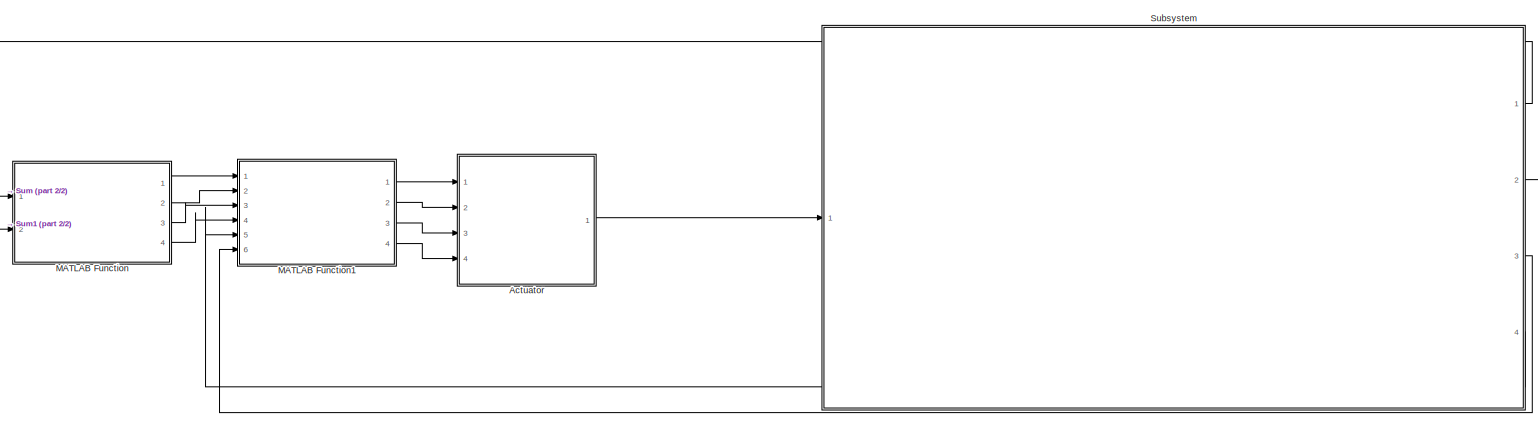
[diagram: root canvas - part 1/2, most of the canvas]
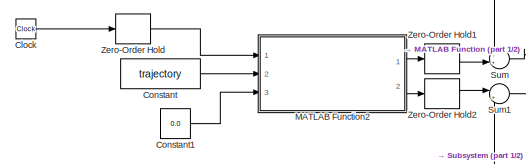
[diagram: root canvas - part 2/2, middle left region]
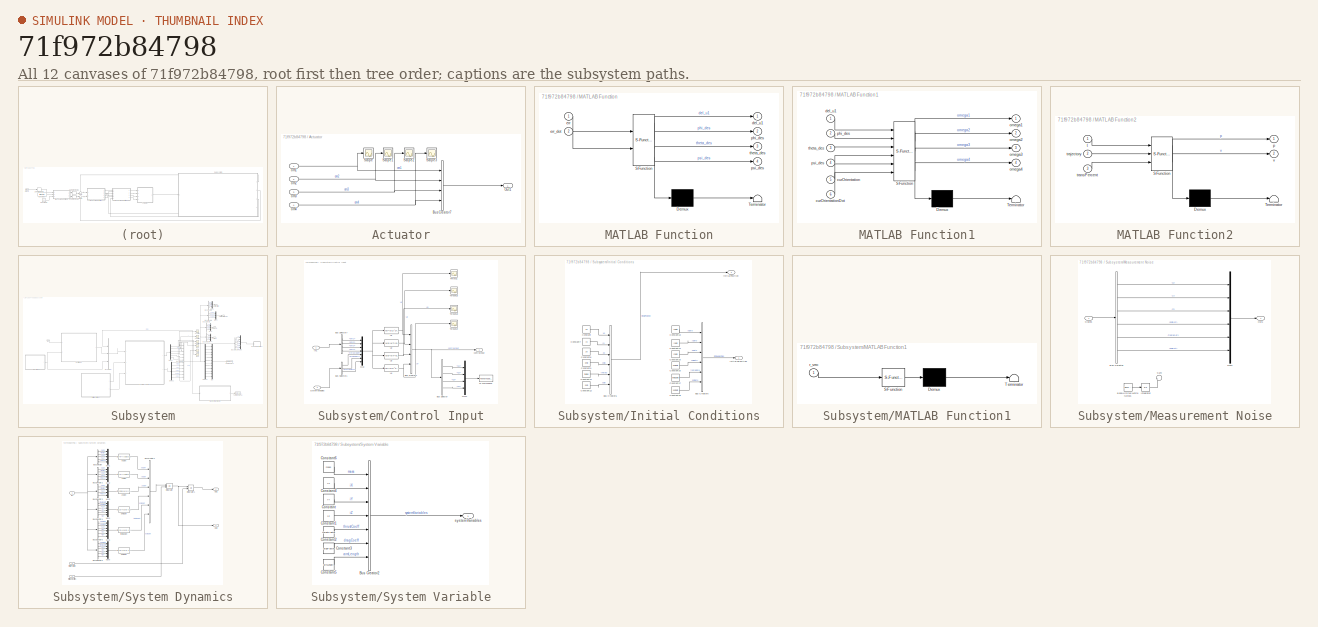
[diagram: thumbnail index - all 12 canvases of the model, root first then tree order]
MODEL slx_71f972b84798
KIND model
CONFIG AbsTol = auto
CONFIG EnableMultiTasking = off
CONFIG FixedStep = auto
CONFIG MaxStep = auto
CONFIG MinStep = auto
CONFIG RelTol = 1e-3
CONFIG SampleTimeConstraint = Unconstrained
CONFIG Solver = VariableStepAuto
CONFIG SolverName = VariableStepAuto
CONFIG StartTime = 0.0
CONFIG StopTime = 2.5
BLOCK [SubSystem] Actuator
  Ports = [4, 1]
  RequestExecContextInheritance = off
BLOCK [BusCreator] Actuator/Bus Creator7
  DisplayOption = bar
  InheritFromInputs = on
  Inputs = 4
  Ports = [4, 1]
BLOCK [Outport] Actuator/Out1
  IconDisplay = Port number
BLOCK [Scope] Actuator/Scope
  Floating = off
  NumInputPorts = 1
  Ports = [1]
  ScopeSpecificationString = Simulink.scopes.TimeScopeBlockCfg('CurrentConfiguration', extmgr.ConfigurationSet(extmgr.Configuration('Core','General UI',true),extmgr.Configuration('Core','Source UI',true),extmgr.Configuration('Sources','WiredSimulink',true,'DataLoggingVariableName','ScopeData1'),extmgr.Configuration('Visuals','Time Domain',true,'SerializedDisplays',{struct('MinYLimReal','-28.45618','MaxYLimReal','8.15408','YLa...<+1366ch>
BLOCK [Scope] Actuator/Scope1
  Floating = off
  NumInputPorts = 1
  Ports = [1]
  ScopeSpecificationString = Simulink.scopes.TimeScopeBlockCfg('CurrentConfiguration', extmgr.ConfigurationSet(extmgr.Configuration('Core','General UI',true),extmgr.Configuration('Core','Source UI',true),extmgr.Configuration('Sources','WiredSimulink',true,'DataLoggingVariableName','ScopeData2'),extmgr.Configuration('Visuals','Time Domain',true),extmgr.Configuration('Tools','Plot Navigation',true),extmgr.Configuration('Tools',...<+40ch>
BLOCK [Scope] Actuator/Scope2
  Floating = off
  NumInputPorts = 1
  Ports = [1]
  ScopeSpecificationString = Simulink.scopes.TimeScopeBlockCfg('CurrentConfiguration', extmgr.ConfigurationSet(extmgr.Configuration('Core','General UI',true),extmgr.Configuration('Core','Source UI',true),extmgr.Configuration('Sources','WiredSimulink',true,'DataLoggingVariableName','ScopeData3'),extmgr.Configuration('Visuals','Time Domain',true),extmgr.Configuration('Tools','Plot Navigation',true),extmgr.Configuration('Tools',...<+40ch>
BLOCK [Scope] Actuator/Scope3
  Floating = off
  NumInputPorts = 1
  Ports = [1]
  ScopeSpecificationString = Simulink.scopes.TimeScopeBlockCfg('CurrentConfiguration', extmgr.ConfigurationSet(extmgr.Configuration('Core','General UI',true),extmgr.Configuration('Core','Source UI',true),extmgr.Configuration('Sources','WiredSimulink',true,'DataLoggingVariableName','ScopeData4'),extmgr.Configuration('Visuals','Time Domain',true),extmgr.Configuration('Tools','Plot Navigation',true),extmgr.Configuration('Tools',...<+40ch>
BLOCK [Inport] Actuator/om1
  IconDisplay = Port number
BLOCK [Inport] Actuator/om2
  IconDisplay = Port number
  Port = 2
BLOCK [Inport] Actuator/om3
  IconDisplay = Port number
  Port = 3
BLOCK [Inport] Actuator/om4
  IconDisplay = Port number
  Port = 4
BLOCK [Clock] Clock
BLOCK [Constant] Constant
  Value = trajectory
BLOCK [Constant] Constant1
  Value = 0.0
BLOCK [SubSystem] MATLAB Function
  ErrorFcn = Stateflow.Translate.translate
  PermitHierarchicalResolution = ExplicitOnly
  Ports = [2, 4]
  RequestExecContextInheritance = off
  SFBlockType = MATLAB Function
  TreatAsAtomicUnit = on
BLOCK [Demux] MATLAB Function/ Demux 
  Outputs = 1
  Ports = [1, 1]
BLOCK [S-Function] MATLAB Function/ SFunction 
  EnableBusSupport = on
  FunctionName = sf_sfun
  PortCounts = [2 5]
  Ports = [2, 5]
  SFcnIsStateOwnerBlock = off
  SFunctionDeploymentMode = off
  Tag = Stateflow S-Function quadcopter_control 3
BLOCK [Terminator] MATLAB Function/ Terminator 
BLOCK [Outport] MATLAB Function/del_u1
  IconDisplay = Port number
BLOCK [Inport] MATLAB Function/err
  IconDisplay = Port number
BLOCK [Inport] MATLAB Function/err_dot
  IconDisplay = Port number
  Port = 2
BLOCK [Outport] MATLAB Function/phi_des
  IconDisplay = Port number
  Port = 2
BLOCK [Outport] MATLAB Function/psi_des
  IconDisplay = Port number
  Port = 4
BLOCK [Outport] MATLAB Function/theta_des
  IconDisplay = Port number
  Port = 3
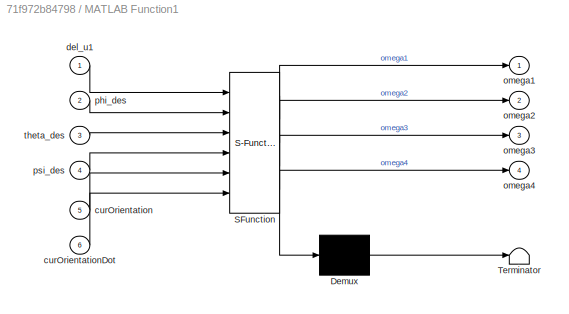
BLOCK [SubSystem] MATLAB Function1
  ErrorFcn = Stateflow.Translate.translate
  PermitHierarchicalResolution = ExplicitOnly
  Ports = [6, 4]
  RequestExecContextInheritance = off
  SFBlockType = MATLAB Function
  TreatAsAtomicUnit = on
BLOCK [Demux] MATLAB Function1/ Demux 
  Outputs = 1
  Ports = [1, 1]
BLOCK [S-Function] MATLAB Function1/ SFunction 
  EnableBusSupport = on
  FunctionName = sf_sfun
  PortCounts = [6 5]
  Ports = [6, 5]
  SFcnIsStateOwnerBlock = off
  SFunctionDeploymentMode = off
  Tag = Stateflow S-Function quadcopter_control 5
BLOCK [Terminator] MATLAB Function1/ Terminator 
BLOCK [Inport] MATLAB Function1/curOrientation
  IconDisplay = Port number
  Port = 5
BLOCK [Inport] MATLAB Function1/curOrientationDot
  IconDisplay = Port number
  Port = 6
BLOCK [Inport] MATLAB Function1/del_u1
  IconDisplay = Port number
BLOCK [Outport] MATLAB Function1/omega1
  IconDisplay = Port number
BLOCK [Outport] MATLAB Function1/omega2
  IconDisplay = Port number
  Port = 2
BLOCK [Outport] MATLAB Function1/omega3
  IconDisplay = Port number
  Port = 3
BLOCK [Outport] MATLAB Function1/omega4
  IconDisplay = Port number
  Port = 4
BLOCK [Inport] MATLAB Function1/phi_des
  IconDisplay = Port number
  Port = 2
BLOCK [Inport] MATLAB Function1/psi_des
  IconDisplay = Port number
  Port = 4
BLOCK [Inport] MATLAB Function1/theta_des
  IconDisplay = Port number
  Port = 3
BLOCK [SubSystem] MATLAB Function2
  ErrorFcn = Stateflow.Translate.translate
  PermitHierarchicalResolution = ExplicitOnly
  Ports = [3, 2]
  RequestExecContextInheritance = off
  SFBlockType = MATLAB Function
  TreatAsAtomicUnit = on
BLOCK [Demux] MATLAB Function2/ Demux 
  Outputs = 1
  Ports = [1, 1]
BLOCK [S-Function] MATLAB Function2/ SFunction 
  EnableBusSupport = on
  FunctionName = sf_sfun
  PortCounts = [3 3]
  Ports = [3, 3]
  SFcnIsStateOwnerBlock = off
  SFunctionDeploymentMode = off
  Tag = Stateflow S-Function quadcopter_control 2
BLOCK [Terminator] MATLAB Function2/ Terminator 
BLOCK [Outport] MATLAB Function2/p
  IconDisplay = Port number
BLOCK [Inport] MATLAB Function2/t
  IconDisplay = Port number
BLOCK [Inport] MATLAB Function2/trajectory
  IconDisplay = Port number
  Port = 2
BLOCK [Inport] MATLAB Function2/transPercent
  IconDisplay = Port number
  Port = 3
BLOCK [Outport] MATLAB Function2/v
  IconDisplay = Port number
  Port = 2
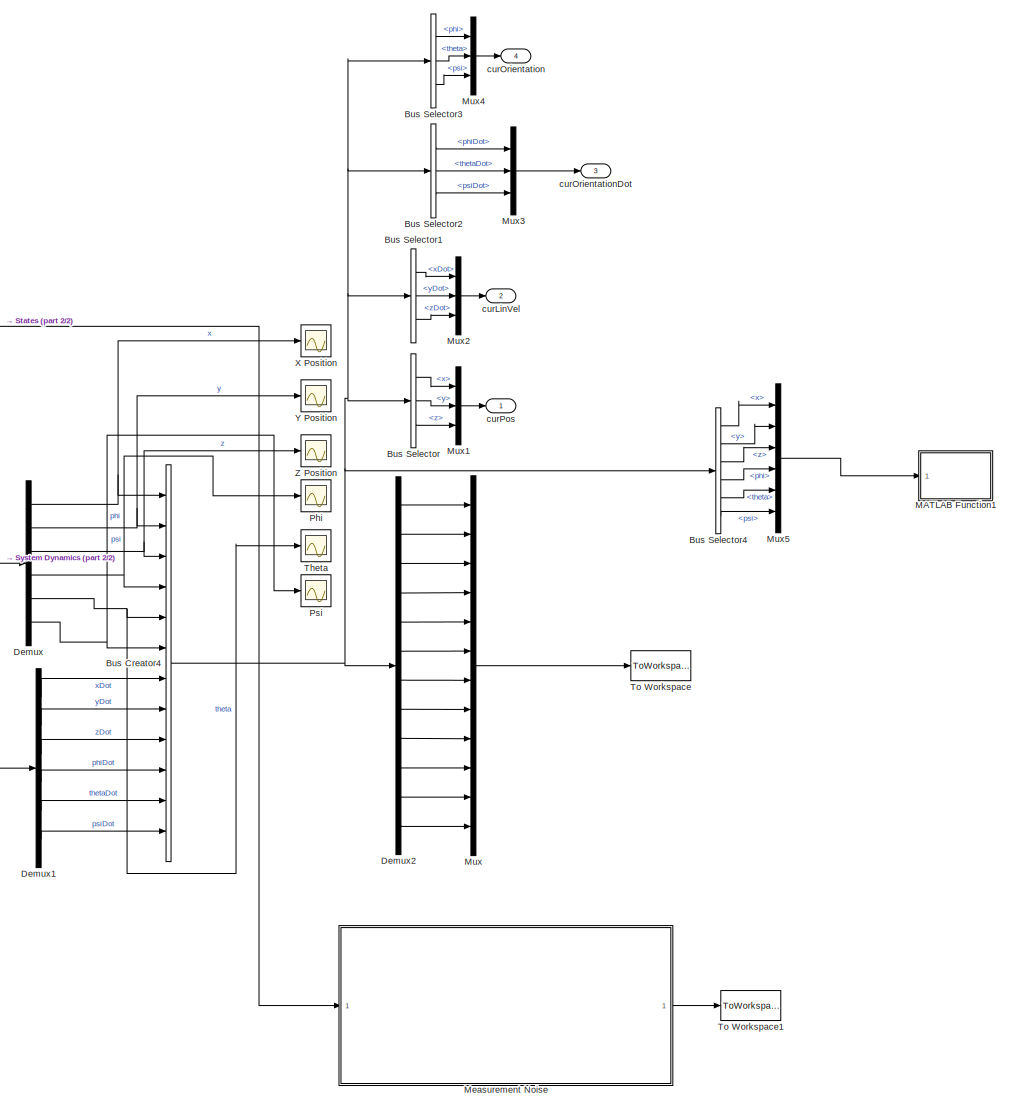
[diagram: Subsystem - part 1/2, right side, full height]
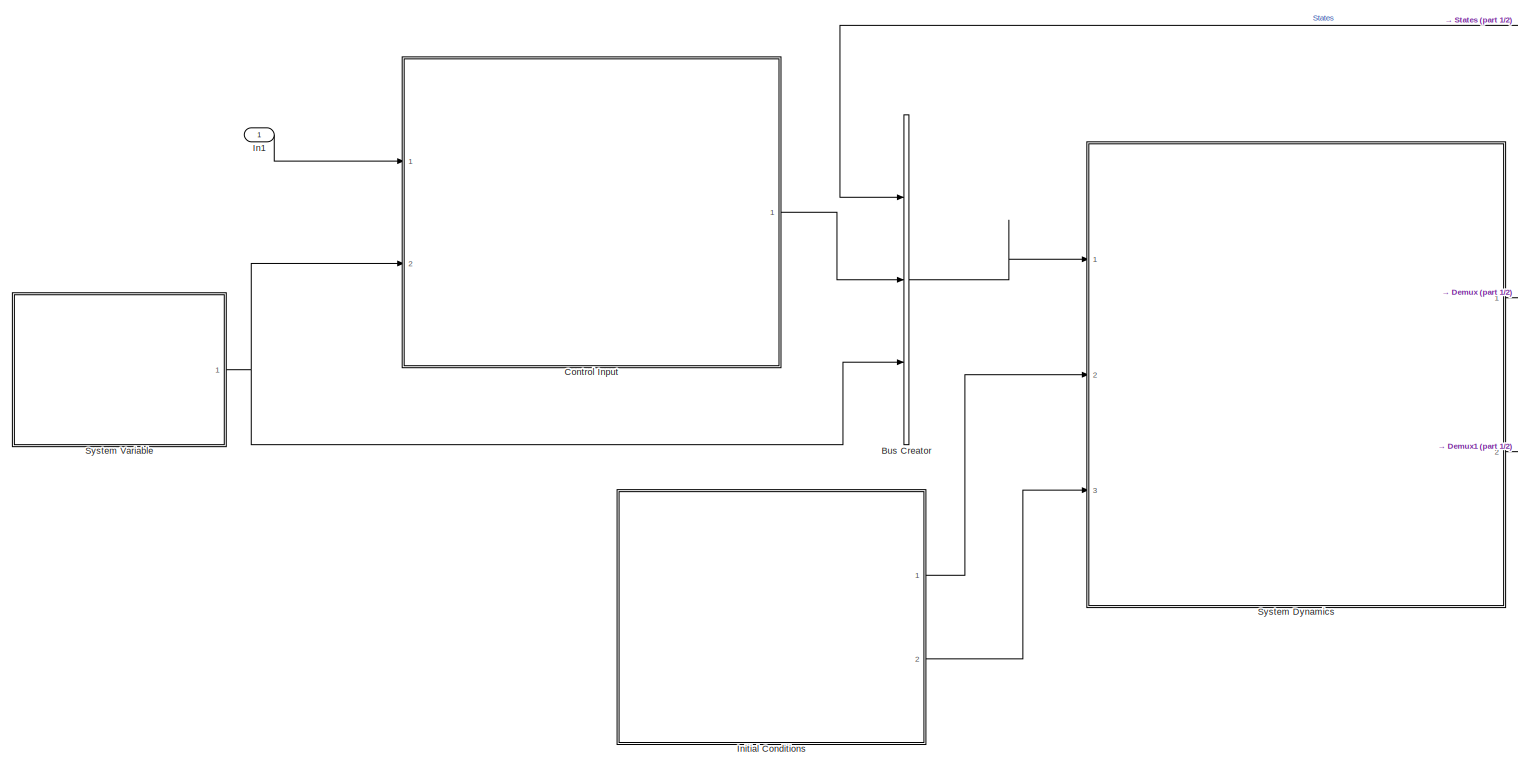
[diagram: Subsystem - part 2/2, middle left region]
BLOCK [SubSystem] Subsystem
  Ports = [1, 4]
  RequestExecContextInheritance = off
BLOCK [BusCreator] Subsystem/Bus Creator
  DisplayOption = bar
  InheritFromInputs = on
  Inputs = 3
  Ports = [3, 1]
BLOCK [BusCreator] Subsystem/Bus Creator4
  DisplayOption = bar
  InheritFromInputs = on
  Inputs = 12
  Ports = [12, 1]
BLOCK [BusSelector] Subsystem/Bus Selector
  OutputAsBus = off
  OutputSignals = x,y,z
  Ports = [1, 3]
BLOCK [BusSelector] Subsystem/Bus Selector1
  OutputAsBus = off
  OutputSignals = xDot,yDot,zDot
  Ports = [1, 3]
BLOCK [BusSelector] Subsystem/Bus Selector2
  OutputAsBus = off
  OutputSignals = phiDot,thetaDot,psiDot
  Ports = [1, 3]
BLOCK [BusSelector] Subsystem/Bus Selector3
  OutputAsBus = off
  OutputSignals = phi,theta,psi
  Ports = [1, 3]
BLOCK [BusSelector] Subsystem/Bus Selector4
  OutputAsBus = off
  OutputSignals = x,y,z,phi,theta,psi
  Ports = [1, 6]
BLOCK [SubSystem] Subsystem/Control Input
  Ports = [2, 1]
  RequestExecContextInheritance = off
BLOCK [BusCreator] Subsystem/Control Input/Bus Creator1
  DisplayOption = bar
  InheritFromInputs = on
  Inputs = 4
  Ports = [4, 1]
BLOCK [BusSelector] Subsystem/Control Input/Bus Selector
  OutputAsBus = off
  OutputSignals = U1,U2,U3,U4
  Ports = [1, 4]
BLOCK [BusSelector] Subsystem/Control Input/Bus Selector1
  OutputAsBus = off
  OutputSignals = thrustCoeff,dragCoeff,armLength
  Ports = [1, 3]
BLOCK [BusSelector] Subsystem/Control Input/Bus Selector7
  OutputAsBus = off
  OutputSignals = om1,om2,om3,om4
  Ports = [1, 4]
BLOCK [Scope] Subsystem/Control Input/ForceU1
  Floating = off
  NumInputPorts = 1
  Ports = [1]
  ScopeSpecificationString = Simulink.scopes.TimeScopeBlockCfg('CurrentConfiguration', extmgr.ConfigurationSet(extmgr.Configuration('Core','General UI',true),extmgr.Configuration('Core','Source UI',true),extmgr.Configuration('Sources','WiredSimulink',true,'DataLoggingVariableName','ScopeData4'),extmgr.Configuration('Visuals','Time Domain',true,'SerializedDisplays',{struct('MinYLimReal','2.6','MaxYLimReal','4.6','YLabelReal','...<+1356ch>
BLOCK [Inport] Subsystem/Control Input/In1
  IconDisplay = Port number
BLOCK [Mux] Subsystem/Control Input/Mux
  DisplayOption = bar
  Inputs = 7
  Ports = [7, 1]
BLOCK [Mux] Subsystem/Control Input/Mux1
  DisplayOption = bar
  Ports = [4, 1]
BLOCK [ToWorkspace] Subsystem/Control Input/To Workspace
  FixptAsFi = on
  MaxDataPoints = inf
  Ports = [1]
  SampleTime = -1
  Save2DSignal = 3-D array (concatenate along third dimension)
  SaveFormat = Timeseries
  VariableName = Input
BLOCK [Scope] Subsystem/Control Input/TorqueU2
  Floating = off
  NumInputPorts = 1
  Ports = [1]
  ScopeSpecificationString = Simulink.scopes.TimeScopeBlockCfg('CurrentConfiguration', extmgr.ConfigurationSet(extmgr.Configuration('Core','General UI',true),extmgr.Configuration('Core','Source UI',true),extmgr.Configuration('Sources','WiredSimulink',true,'DataLoggingVariableName','ScopeData7'),extmgr.Configuration('Visuals','Time Domain',true,'SerializedDisplays',{struct('MinYLimReal','-1.00000','MaxYLimReal','1.00000','YLab...<+1390ch>
BLOCK [Scope] Subsystem/Control Input/TorqueU3
  Floating = off
  NumInputPorts = 1
  Ports = [1]
  ScopeSpecificationString = Simulink.scopes.TimeScopeBlockCfg('CurrentConfiguration', extmgr.ConfigurationSet(extmgr.Configuration('Core','General UI',true),extmgr.Configuration('Core','Source UI',true),extmgr.Configuration('Sources','WiredSimulink',true,'DataLoggingVariableName','ScopeData5'),extmgr.Configuration('Visuals','Time Domain',true,'SerializedDisplays',{struct('MinYLimReal','-1.00000','MaxYLimReal','1.00000','YLab...<+1361ch>
BLOCK [Scope] Subsystem/Control Input/TorqueU4
  Floating = off
  NumInputPorts = 1
  Ports = [1]
  ScopeSpecificationString = Simulink.scopes.TimeScopeBlockCfg('CurrentConfiguration', extmgr.ConfigurationSet(extmgr.Configuration('Core','General UI',true),extmgr.Configuration('Core','Source UI',true),extmgr.Configuration('Sources','WiredSimulink',true,'DataLoggingVariableName','ScopeData6'),extmgr.Configuration('Visuals','Time Domain',true,'SerializedDisplays',{struct('MinYLimReal','-1.00000','MaxYLimReal','1.00000','YLab...<+1361ch>
BLOCK [Fcn] Subsystem/Control Input/U1
  Expr = u(5)*(u(1)^2+u(2)^2+u(3)^2+u(4)^2)
BLOCK [Fcn] Subsystem/Control Input/U2
  Expr = (u(5)*u(7)*sin(pi/4))*(u(1)^2+u(2)^2-u(3)^2-u(4)^2)
BLOCK [Fcn] Subsystem/Control Input/U3
  Expr = (u(5)*u(7)*sin(pi/4))*(-u(1)^2+u(2)^2+u(3)^2-u(4)^2)
BLOCK [Fcn] Subsystem/Control Input/U4
  Expr = u(6)*(u(1)^2-u(2)^2+u(3)^2-u(4)^2)
BLOCK [Outport] Subsystem/Control Input/controlInput
  IconDisplay = Port number
BLOCK [Inport] Subsystem/Control Input/systemVariables
  IconDisplay = Port number
  Port = 2
BLOCK [Demux] Subsystem/Demux
  DisplayOption = bar
  Outputs = 6
  Ports = [1, 6]
BLOCK [Demux] Subsystem/Demux1
  DisplayOption = bar
  Outputs = 6
  Ports = [1, 6]
BLOCK [Demux] Subsystem/Demux2
  DisplayOption = bar
  Outputs = 12
  Ports = [1, 12]
BLOCK [Inport] Subsystem/In1
  IconDisplay = Port number
BLOCK [SubSystem] Subsystem/Initial Conditions
  Ports = [0, 2]
  RequestExecContextInheritance = off
BLOCK [BusCreator] Subsystem/Initial Conditions/Bus Creator5
  DisplayOption = bar
  InheritFromInputs = on
  Inputs = 6
  Ports = [6, 1]
BLOCK [BusCreator] Subsystem/Initial Conditions/Bus Creator6
  DisplayOption = bar
  InheritFromInputs = on
  Inputs = 6
  Ports = [6, 1]
BLOCK [Constant] Subsystem/Initial Conditions/Constant
  Value = x0
BLOCK [Constant] Subsystem/Initial Conditions/Constant11
  Value = theta0
BLOCK [Constant] Subsystem/Initial Conditions/Constant12
  Value = psi0
BLOCK [Constant] Subsystem/Initial Conditions/Constant13
  Value = xDot0
BLOCK [Constant] Subsystem/Initial Conditions/Constant14
  Value = yDot0
BLOCK [Constant] Subsystem/Initial Conditions/Constant15
  Value = zDot0
BLOCK [Constant] Subsystem/Initial Conditions/Constant16
  Value = phiDot0
BLOCK [Constant] Subsystem/Initial Conditions/Constant17
  Value = thetaDot0
BLOCK [Constant] Subsystem/Initial Conditions/Constant18
  Value = psiDot0
BLOCK [Constant] Subsystem/Initial Conditions/Constant7
  Value = y0
BLOCK [Constant] Subsystem/Initial Conditions/Constant8
  Value = z0
BLOCK [Constant] Subsystem/Initial Conditions/Constant9
  Value = phi0
BLOCK [Outport] Subsystem/Initial Conditions/initialPosition
  IconDisplay = Port number
  Port = 2
BLOCK [Outport] Subsystem/Initial Conditions/initialVelocities
  IconDisplay = Port number
BLOCK [SubSystem] Subsystem/MATLAB Function1
  ErrorFcn = Stateflow.Translate.translate
  PermitHierarchicalResolution = ExplicitOnly
  Ports = [1]
  RequestExecContextInheritance = off
  SFBlockType = MATLAB Function
  TreatAsAtomicUnit = on
BLOCK [Demux] Subsystem/MATLAB Function1/ Demux 
  Outputs = 1
  Ports = [1, 1]
BLOCK [S-Function] Subsystem/MATLAB Function1/ SFunction 
  EnableBusSupport = on
  FunctionName = sf_sfun
  PortCounts = [1 1]
  Ports = [1, 1]
  SFcnIsStateOwnerBlock = off
  SFunctionDeploymentMode = off
  Tag = Stateflow S-Function quadcopter_control 1
BLOCK [Terminator] Subsystem/MATLAB Function1/ Terminator 
BLOCK [Inport] Subsystem/MATLAB Function1/r_vec
  IconDisplay = Port number
BLOCK [SubSystem] Subsystem/Measurement Noise
  Commented = on
  Ports = [1, 1]
  RequestExecContextInheritance = off
BLOCK [Reference] Subsystem/Measurement Noise/Band-Limited White Noise1  REF=simulink/Sources/Band-Limited
White Noise
  Commented = on
  Ports = [0, 1]
  SourceBlock = simulink/Sources/Band-Limited\nWhite Noise
  SourceProductBaseCode = SL
  SourceProductName = Simulink
  SourceType = Band-Limited White Noise.
BLOCK [BusSelector] Subsystem/Measurement Noise/Bus Selector
  OutputAsBus = off
  OutputSignals = x,y,z,phiDot,thetaDot,psiDot
  Ports = [1, 6]
BLOCK [Integrator] Subsystem/Measurement Noise/Integrator
  Commented = on
  Ports = [1, 1]
BLOCK [Mux] Subsystem/Measurement Noise/Mux1
  DisplayOption = bar
  Inputs = 6
  Ports = [6, 1]
BLOCK [Outport] Subsystem/Measurement Noise/Out1
  IconDisplay = Port number
BLOCK [Inport] Subsystem/Measurement Noise/States
  IconDisplay = Port number
BLOCK [Sum] Subsystem/Measurement Noise/Sum
  Commented = on
  IconShape = round
  InputSameDT = off
  Inputs = |++
  OutDataTypeStr = Inherit: Inherit via internal rule
  Ports = [2, 1]
  SaturateOnIntegerOverflow = off
BLOCK [Mux] Subsystem/Mux
  DisplayOption = bar
  Inputs = 12
  Ports = [12, 1]
BLOCK [Mux] Subsystem/Mux1
  DisplayOption = bar
  Inputs = 3
  Ports = [3, 1]
BLOCK [Mux] Subsystem/Mux2
  DisplayOption = bar
  Inputs = 3
  Ports = [3, 1]
BLOCK [Mux] Subsystem/Mux3
  DisplayOption = bar
  Inputs = 3
  Ports = [3, 1]
BLOCK [Mux] Subsystem/Mux4
  DisplayOption = bar
  Inputs = 3
  Ports = [3, 1]
BLOCK [Mux] Subsystem/Mux5
  DisplayOption = bar
  Inputs = 6
  Ports = [6, 1]
BLOCK [Scope] Subsystem/Phi
  Floating = off
  NumInputPorts = 1
  Ports = [1]
  ScopeSpecificationString = Simulink.scopes.TimeScopeBlockCfg('CurrentConfiguration', extmgr.ConfigurationSet(extmgr.Configuration('Core','General UI',true),extmgr.Configuration('Core','Source UI',true),extmgr.Configuration('Sources','WiredSimulink',true,'DataLoggingVariableName','ScopeData1'),extmgr.Configuration('Visuals','Time Domain',true,'SerializedDisplays',{struct('MinYLimReal','-0.0000000000000002','MaxYLimReal','0.0...<+1450ch>
BLOCK [Scope] Subsystem/Psi
  Floating = off
  NumInputPorts = 1
  Ports = [1]
  ScopeSpecificationString = Simulink.scopes.TimeScopeBlockCfg('CurrentConfiguration', extmgr.ConfigurationSet(extmgr.Configuration('Core','General UI',true),extmgr.Configuration('Core','Source UI',true),extmgr.Configuration('Sources','WiredSimulink',true,'DataLoggingVariableName','ScopeData3'),extmgr.Configuration('Visuals','Time Domain',true,'SerializedDisplays',{struct('MinYLimReal','-1.00000','MaxYLimReal','1.00000','YLab...<+1362ch>
BLOCK [SubSystem] Subsystem/System Dynamics
  Ports = [3, 2]
  RequestExecContextInheritance = off
BLOCK [BusCreator] Subsystem/System Dynamics/Bus Creator3
  DisplayOption = bar
  InheritFromInputs = on
  Inputs = 6
  Ports = [6, 1]
BLOCK [BusSelector] Subsystem/System Dynamics/Bus Selector
  OutputAsBus = off
  OutputSignals = States.phi,States.theta,States.psi,controlInput.U1,systemVariables.mass
  Ports = [1, 5]
BLOCK [BusSelector] Subsystem/System Dynamics/Bus Selector2
  OutputAsBus = off
  OutputSignals = States.phi,States.theta,States.psi,controlInput.U1,systemVariables.mass
  Ports = [1, 5]
BLOCK [BusSelector] Subsystem/System Dynamics/Bus Selector3
  OutputAsBus = off
  OutputSignals = States.phi,States.theta,controlInput.U1,systemVariables.mass
  Ports = [1, 4]
BLOCK [BusSelector] Subsystem/System Dynamics/Bus Selector4
  OutputAsBus = off
  OutputSignals = States.thetaDot,States.psiDot,controlInput.U2,systemVariables.iX,systemVariables.iY,systemVariables.iZ
  Ports = [1, 6]
BLOCK [BusSelector] Subsystem/System Dynamics/Bus Selector5
  OutputAsBus = off
  OutputSignals = States.phiDot,States.psiDot,controlInput.U3,systemVariables.iX,systemVariables.iY,systemVariables.iZ
  Ports = [1, 6]
BLOCK [BusSelector] Subsystem/System Dynamics/Bus Selector6
  OutputAsBus = off
  OutputSignals = States.phiDot,States.thetaDot,controlInput.U4,systemVariables.iX,systemVariables.iY,systemVariables.iZ
  Ports = [1, 6]
BLOCK [Inport] Subsystem/System Dynamics/In1
  IconDisplay = Port number
BLOCK [Integrator] Subsystem/System Dynamics/Integrator
  InitialConditionSource = external
  Ports = [2, 1]
BLOCK [Integrator] Subsystem/System Dynamics/Integrator1
  InitialConditionSource = external
  Ports = [2, 1]
BLOCK [Mux] Subsystem/System Dynamics/Mux1
  DisplayOption = bar
  Inputs = 5
  Ports = [5, 1]
BLOCK [Mux] Subsystem/System Dynamics/Mux2
  DisplayOption = bar
  Inputs = 5
  Ports = [5, 1]
BLOCK [Mux] Subsystem/System Dynamics/Mux3
  DisplayOption = bar
  Ports = [4, 1]
BLOCK [Mux] Subsystem/System Dynamics/Mux4
  DisplayOption = bar
  Inputs = 6
  Ports = [6, 1]
BLOCK [Mux] Subsystem/System Dynamics/Mux5
  DisplayOption = bar
  Inputs = 6
  Ports = [6, 1]
BLOCK [Mux] Subsystem/System Dynamics/Mux6
  DisplayOption = bar
  Inputs = 6
  Ports = [6, 1]
BLOCK [Outport] Subsystem/System Dynamics/Out1
  IconDisplay = Port number
BLOCK [Outport] Subsystem/System Dynamics/Out2
  IconDisplay = Port number
  Port = 2
BLOCK [Inport] Subsystem/System Dynamics/initialPosition
  IconDisplay = Port number
  Port = 3
BLOCK [Inport] Subsystem/System Dynamics/initialVelocities
  IconDisplay = Port number
  Port = 2
BLOCK [Fcn] Subsystem/System Dynamics/phidDot
  Expr = (u(3)+(u(5)-u(6))*(u(1)*u(2)))/u(4)
BLOCK [Fcn] Subsystem/System Dynamics/psidDot
  Expr = (u(3)+(u(4)-u(5))*(u(1)*u(2)))/u(6)
BLOCK [Fcn] Subsystem/System Dynamics/thetadDot
  Expr = (u(3)+(u(6)-u(4))*(u(1)*u(2)))/u(5)
BLOCK [Fcn] Subsystem/System Dynamics/xdDot
  Expr = (u(4)*((cos(u(1))*sin(u(2))*cos(u(3)))+(sin(u(1))*sin(u(3)))))/u(5)
BLOCK [Fcn] Subsystem/System Dynamics/ydDot
  Expr = (u(4)*((cos(u(1))*sin(u(2))*sin(u(3)))-(sin(u(1))*cos(u(3)))))/u(5)
BLOCK [Fcn] Subsystem/System Dynamics/zdDot
  Expr = (((cos(u(1))*cos(u(2)))*u(3))/u(4))-9.81
BLOCK [SubSystem] Subsystem/System Variable
  Ports = [0, 1]
  RequestExecContextInheritance = off
BLOCK [BusCreator] Subsystem/System Variable/Bus Creator2
  DisplayOption = bar
  InheritFromInputs = on
  Inputs = 7
  Ports = [7, 1]
BLOCK [Constant] Subsystem/System Variable/Constant
  Value = iY
BLOCK [Constant] Subsystem/System Variable/Constant1
  Value = iZ
BLOCK [Constant] Subsystem/System Variable/Constant2
  Value = thrustFactor
BLOCK [Constant] Subsystem/System Variable/Constant3
  Value = dragFactor
BLOCK [Constant] Subsystem/System Variable/Constant4
  Value = iX
BLOCK [Constant] Subsystem/System Variable/Constant5
  Value = armLength
BLOCK [Constant] Subsystem/System Variable/Constant6
  Value = mass
BLOCK [Outport] Subsystem/System Variable/systemVariables
  IconDisplay = Port number
BLOCK [Scope] Subsystem/Theta
  Floating = off
  NumInputPorts = 1
  Ports = [1]
  ScopeSpecificationString = Simulink.scopes.TimeScopeBlockCfg('CurrentConfiguration', extmgr.ConfigurationSet(extmgr.Configuration('Core','General UI',true),extmgr.Configuration('Core','Source UI',true),extmgr.Configuration('Sources','WiredSimulink',true,'DataLoggingVariableName','ScopeData2'),extmgr.Configuration('Visuals','Time Domain',true,'SerializedDisplays',{struct('MinYLimReal','-0.3182','MaxYLimReal','2.86378','YLabe...<+1362ch>
BLOCK [ToWorkspace] Subsystem/To Workspace
  FixptAsFi = on
  MaxDataPoints = inf
  Ports = [1]
  SampleTime = -1
  Save2DSignal = 3-D array (concatenate along third dimension)
  SaveFormat = Timeseries
  VariableName = simout
BLOCK [ToWorkspace] Subsystem/To Workspace1
  Commented = on
  FixptAsFi = on
  MaxDataPoints = inf
  Ports = [1]
  SampleTime = -1
  Save2DSignal = 3-D array (concatenate along third dimension)
  SaveFormat = Timeseries
  VariableName = sensorMeasure
BLOCK [Scope] Subsystem/X Position
  Floating = off
  NumInputPorts = 1
  Ports = [1]
  ScopeSpecificationString = Simulink.scopes.TimeScopeBlockCfg('CurrentConfiguration', extmgr.ConfigurationSet(extmgr.Configuration('Core','General UI',true),extmgr.Configuration('Core','Source UI',true),extmgr.Configuration('Sources','WiredSimulink',true,'DataLoggingVariableName','ScopeData1'),extmgr.Configuration('Visuals','Time Domain',true,'SerializedDisplays',{struct('MinYLimReal','-1.00000','MaxYLimReal','1.00000','YLab...<+1389ch>
BLOCK [Scope] Subsystem/Y Position
  Floating = off
  NumInputPorts = 1
  Ports = [1]
  ScopeSpecificationString = Simulink.scopes.TimeScopeBlockCfg('CurrentConfiguration', extmgr.ConfigurationSet(extmgr.Configuration('Core','General UI',true),extmgr.Configuration('Core','Source UI',true),extmgr.Configuration('Sources','WiredSimulink',true,'DataLoggingVariableName','ScopeData2'),extmgr.Configuration('Visuals','Time Domain',true,'SerializedDisplays',{struct('MinYLimReal','-1.00000','MaxYLimReal','1.00000','YLab...<+1360ch>
BLOCK [Scope] Subsystem/Z Position
  Floating = off
  NumInputPorts = 1
  Ports = [1]
  ScopeSpecificationString = Simulink.scopes.TimeScopeBlockCfg('CurrentConfiguration', extmgr.ConfigurationSet(extmgr.Configuration('Core','General UI',true),extmgr.Configuration('Core','Source UI',true),extmgr.Configuration('Sources','WiredSimulink',true,'DataLoggingVariableName','ScopeData3'),extmgr.Configuration('Visuals','Time Domain',true,'SerializedDisplays',{struct('MinYLimReal','-1.27535','MaxYLimReal','11.47813','YLa...<+1364ch>
BLOCK [Outport] Subsystem/curLinVel
  IconDisplay = Port number
  Port = 2
BLOCK [Outport] Subsystem/curOrientation
  IconDisplay = Port number
  Port = 4
BLOCK [Outport] Subsystem/curOrientationDot
  IconDisplay = Port number
  Port = 3
BLOCK [Outport] Subsystem/curPos
  IconDisplay = Port number
BLOCK [Sum] Sum
  IconShape = round
  InputSameDT = off
  Inputs = -+|
  OutDataTypeStr = Inherit: Inherit via internal rule
  Ports = [2, 1]
  SaturateOnIntegerOverflow = off
BLOCK [Sum] Sum1
  IconShape = round
  InputSameDT = off
  Inputs = |+-
  OutDataTypeStr = Inherit: Inherit via internal rule
  Ports = [2, 1]
  SaturateOnIntegerOverflow = off
BLOCK [ZeroOrderHold] Zero-Order Hold
  SampleTime = 0.001
BLOCK [ZeroOrderHold] Zero-Order Hold1
  SampleTime = 0.001
BLOCK [ZeroOrderHold] Zero-Order Hold2
  SampleTime = 0.001
LINE Actuator/Bus Creator7:1 -> Actuator/Out1:1
NET Actuator/om1:1 -> Actuator/Bus Creator7:1, Actuator/Scope:1
NET Actuator/om2:1 -> Actuator/Bus Creator7:2, Actuator/Scope1:1
NET Actuator/om3:1 -> Actuator/Bus Creator7:3, Actuator/Scope2:1
NET Actuator/om4:1 -> Actuator/Bus Creator7:4, Actuator/Scope3:1
LINE Actuator:1 -> Subsystem:1
LINE Clock:1 -> Zero-Order Hold:1
LINE Constant1:1 -> MATLAB Function2:3
LINE Constant:1 -> MATLAB Function2:2
LINE MATLAB Function1:1 -> Actuator:1
LINE MATLAB Function1:2 -> Actuator:2
LINE MATLAB Function1:3 -> Actuator:3
LINE MATLAB Function1:4 -> Actuator:4
LINE MATLAB Function2:1 -> Zero-Order Hold1:1
LINE MATLAB Function2:2 -> Zero-Order Hold2:1
LINE MATLAB Function:1 -> MATLAB Function1:1
LINE MATLAB Function:2 -> MATLAB Function1:2
LINE MATLAB Function:3 -> MATLAB Function1:3
LINE MATLAB Function:4 -> MATLAB Function1:4
NET Subsystem/Bus Creator4:1 -> Subsystem/Bus Creator:1, Subsystem/Bus Selector1:1, Subsystem/Bus Selector2:1, Subsystem/Bus Selector3:1, Subsystem/Bus Selector4:1, Subsystem/Bus Selector:1, Subsystem/Demux2:1, Subsystem/Measurement Noise:1
LINE Subsystem/Bus Creator:1 -> Subsystem/System Dynamics:1
LINE Subsystem/Bus Selector1:1 -> Subsystem/Mux2:1
LINE Subsystem/Bus Selector1:2 -> Subsystem/Mux2:2
LINE Subsystem/Bus Selector1:3 -> Subsystem/Mux2:3
LINE Subsystem/Bus Selector2:1 -> Subsystem/Mux3:1
LINE Subsystem/Bus Selector2:2 -> Subsystem/Mux3:2
LINE Subsystem/Bus Selector2:3 -> Subsystem/Mux3:3
LINE Subsystem/Bus Selector3:1 -> Subsystem/Mux4:1
LINE Subsystem/Bus Selector3:2 -> Subsystem/Mux4:2
LINE Subsystem/Bus Selector3:3 -> Subsystem/Mux4:3
LINE Subsystem/Bus Selector4:1 -> Subsystem/Mux5:1
LINE Subsystem/Bus Selector4:2 -> Subsystem/Mux5:2
LINE Subsystem/Bus Selector4:3 -> Subsystem/Mux5:3
LINE Subsystem/Bus Selector4:4 -> Subsystem/Mux5:4
LINE Subsystem/Bus Selector4:5 -> Subsystem/Mux5:5
LINE Subsystem/Bus Selector4:6 -> Subsystem/Mux5:6
LINE Subsystem/Bus Selector:1 -> Subsystem/Mux1:1
LINE Subsystem/Bus Selector:2 -> Subsystem/Mux1:2
LINE Subsystem/Bus Selector:3 -> Subsystem/Mux1:3
NET Subsystem/Control Input/Bus Creator1:1 -> Subsystem/Control Input/Bus Selector:1, Subsystem/Control Input/controlInput:1
LINE Subsystem/Control Input/Bus Selector1:1 -> Subsystem/Control Input/Mux:5
LINE Subsystem/Control Input/Bus Selector1:2 -> Subsystem/Control Input/Mux:6
LINE Subsystem/Control Input/Bus Selector1:3 -> Subsystem/Control Input/Mux:7
LINE Subsystem/Control Input/Bus Selector7:1 -> Subsystem/Control Input/Mux:1
LINE Subsystem/Control Input/Bus Selector7:2 -> Subsystem/Control Input/Mux:2
LINE Subsystem/Control Input/Bus Selector7:3 -> Subsystem/Control Input/Mux:3
LINE Subsystem/Control Input/Bus Selector7:4 -> Subsystem/Control Input/Mux:4
LINE Subsystem/Control Input/Bus Selector:1 -> Subsystem/Control Input/Mux1:1
LINE Subsystem/Control Input/Bus Selector:2 -> Subsystem/Control Input/Mux1:2
LINE Subsystem/Control Input/Bus Selector:3 -> Subsystem/Control Input/Mux1:3
LINE Subsystem/Control Input/Bus Selector:4 -> Subsystem/Control Input/Mux1:4
LINE Subsystem/Control Input/In1:1 -> Subsystem/Control Input/Bus Selector7:1
LINE Subsystem/Control Input/Mux1:1 -> Subsystem/Control Input/To Workspace:1
NET Subsystem/Control Input/Mux:1 -> Subsystem/Control Input/U1:1, Subsystem/Control Input/U2:1, Subsystem/Control Input/U3:1, Subsystem/Control Input/U4:1
NET Subsystem/Control Input/U1:1 -> Subsystem/Control Input/Bus Creator1:1, Subsystem/Control Input/ForceU1:1
NET Subsystem/Control Input/U2:1 -> Subsystem/Control Input/Bus Creator1:2, Subsystem/Control Input/TorqueU2:1
NET Subsystem/Control Input/U3:1 -> Subsystem/Control Input/Bus Creator1:3, Subsystem/Control Input/TorqueU3:1
NET Subsystem/Control Input/U4:1 -> Subsystem/Control Input/Bus Creator1:4, Subsystem/Control Input/TorqueU4:1
LINE Subsystem/Control Input/systemVariables:1 -> Subsystem/Control Input/Bus Selector1:1
LINE Subsystem/Control Input:1 -> Subsystem/Bus Creator:2
LINE Subsystem/Demux1:1 -> Subsystem/Bus Creator4:7
LINE Subsystem/Demux1:2 -> Subsystem/Bus Creator4:8
LINE Subsystem/Demux1:3 -> Subsystem/Bus Creator4:9
LINE Subsystem/Demux1:4 -> Subsystem/Bus Creator4:10
LINE Subsystem/Demux1:5 -> Subsystem/Bus Creator4:11
LINE Subsystem/Demux1:6 -> Subsystem/Bus Creator4:12
LINE Subsystem/Demux2:1 -> Subsystem/Mux:1
LINE Subsystem/Demux2:10 -> Subsystem/Mux:10
LINE Subsystem/Demux2:11 -> Subsystem/Mux:11
LINE Subsystem/Demux2:12 -> Subsystem/Mux:12
LINE Subsystem/Demux2:2 -> Subsystem/Mux:2
LINE Subsystem/Demux2:3 -> Subsystem/Mux:3
LINE Subsystem/Demux2:4 -> Subsystem/Mux:4
LINE Subsystem/Demux2:5 -> Subsystem/Mux:5
LINE Subsystem/Demux2:6 -> Subsystem/Mux:6
LINE Subsystem/Demux2:7 -> Subsystem/Mux:7
LINE Subsystem/Demux2:8 -> Subsystem/Mux:8
LINE Subsystem/Demux2:9 -> Subsystem/Mux:9
NET Subsystem/Demux:1 -> Subsystem/Bus Creator4:1, Subsystem/X Position:1
NET Subsystem/Demux:2 -> Subsystem/Bus Creator4:2, Subsystem/Y Position:1
NET Subsystem/Demux:3 -> Subsystem/Bus Creator4:3, Subsystem/Z Position:1
NET Subsystem/Demux:4 -> Subsystem/Bus Creator4:4, Subsystem/Phi:1
NET Subsystem/Demux:5 -> Subsystem/Bus Creator4:5, Subsystem/Theta:1
NET Subsystem/Demux:6 -> Subsystem/Bus Creator4:6, Subsystem/Psi:1
LINE Subsystem/In1:1 -> Subsystem/Control Input:1
LINE Subsystem/Initial Conditions/Bus Creator5:1 -> Subsystem/Initial Conditions/initialPosition:1
LINE Subsystem/Initial Conditions/Bus Creator6:1 -> Subsystem/Initial Conditions/initialVelocities:1
LINE Subsystem/Initial Conditions/Constant11:1 -> Subsystem/Initial Conditions/Bus Creator5:5
LINE Subsystem/Initial Conditions/Constant12:1 -> Subsystem/Initial Conditions/Bus Creator5:6
LINE Subsystem/Initial Conditions/Constant13:1 -> Subsystem/Initial Conditions/Bus Creator6:1
LINE Subsystem/Initial Conditions/Constant14:1 -> Subsystem/Initial Conditions/Bus Creator6:2
LINE Subsystem/Initial Conditions/Constant15:1 -> Subsystem/Initial Conditions/Bus Creator6:3
LINE Subsystem/Initial Conditions/Constant16:1 -> Subsystem/Initial Conditions/Bus Creator6:4
LINE Subsystem/Initial Conditions/Constant17:1 -> Subsystem/Initial Conditions/Bus Creator6:5
LINE Subsystem/Initial Conditions/Constant18:1 -> Subsystem/Initial Conditions/Bus Creator6:6
LINE Subsystem/Initial Conditions/Constant7:1 -> Subsystem/Initial Conditions/Bus Creator5:2
LINE Subsystem/Initial Conditions/Constant8:1 -> Subsystem/Initial Conditions/Bus Creator5:3
LINE Subsystem/Initial Conditions/Constant9:1 -> Subsystem/Initial Conditions/Bus Creator5:4
LINE Subsystem/Initial Conditions/Constant:1 -> Subsystem/Initial Conditions/Bus Creator5:1
LINE Subsystem/Initial Conditions:1 -> Subsystem/System Dynamics:2
LINE Subsystem/Initial Conditions:2 -> Subsystem/System Dynamics:3
LINE Subsystem/Measurement Noise/Band-Limited White Noise1:1 -> Subsystem/Measurement Noise/Integrator:1
LINE Subsystem/Measurement Noise/Bus Selector:1 -> Subsystem/Measurement Noise/Mux1:1
LINE Subsystem/Measurement Noise/Bus Selector:2 -> Subsystem/Measurement Noise/Mux1:2
LINE Subsystem/Measurement Noise/Bus Selector:3 -> Subsystem/Measurement Noise/Mux1:3
LINE Subsystem/Measurement Noise/Bus Selector:4 -> Subsystem/Measurement Noise/Mux1:4
LINE Subsystem/Measurement Noise/Bus Selector:5 -> Subsystem/Measurement Noise/Mux1:5
LINE Subsystem/Measurement Noise/Bus Selector:6 -> Subsystem/Measurement Noise/Mux1:6
LINE Subsystem/Measurement Noise/Integrator:1 -> Subsystem/Measurement Noise/Sum:2
LINE Subsystem/Measurement Noise/Mux1:1 -> Subsystem/Measurement Noise/Out1:1
LINE Subsystem/Measurement Noise/States:1 -> Subsystem/Measurement Noise/Bus Selector:1
LINE Subsystem/Measurement Noise:1 -> Subsystem/To Workspace1:1
LINE Subsystem/Mux1:1 -> Subsystem/curPos:1
LINE Subsystem/Mux2:1 -> Subsystem/curLinVel:1
LINE Subsystem/Mux3:1 -> Subsystem/curOrientationDot:1
LINE Subsystem/Mux4:1 -> Subsystem/curOrientation:1
LINE Subsystem/Mux5:1 -> Subsystem/MATLAB Function1:1
LINE Subsystem/Mux:1 -> Subsystem/To Workspace:1
LINE Subsystem/System Dynamics/Bus Creator3:1 -> Subsystem/System Dynamics/Integrator:1
LINE Subsystem/System Dynamics/Bus Selector2:1 -> Subsystem/System Dynamics/Mux2:1
LINE Subsystem/System Dynamics/Bus Selector2:2 -> Subsystem/System Dynamics/Mux2:2
LINE Subsystem/System Dynamics/Bus Selector2:3 -> Subsystem/System Dynamics/Mux2:3
LINE Subsystem/System Dynamics/Bus Selector2:4 -> Subsystem/System Dynamics/Mux2:4
LINE Subsystem/System Dynamics/Bus Selector2:5 -> Subsystem/System Dynamics/Mux2:5
LINE Subsystem/System Dynamics/Bus Selector3:1 -> Subsystem/System Dynamics/Mux3:1
LINE Subsystem/System Dynamics/Bus Selector3:2 -> Subsystem/System Dynamics/Mux3:2
LINE Subsystem/System Dynamics/Bus Selector3:3 -> Subsystem/System Dynamics/Mux3:3
LINE Subsystem/System Dynamics/Bus Selector3:4 -> Subsystem/System Dynamics/Mux3:4
LINE Subsystem/System Dynamics/Bus Selector4:1 -> Subsystem/System Dynamics/Mux4:1
LINE Subsystem/System Dynamics/Bus Selector4:2 -> Subsystem/System Dynamics/Mux4:2
LINE Subsystem/System Dynamics/Bus Selector4:3 -> Subsystem/System Dynamics/Mux4:3
LINE Subsystem/System Dynamics/Bus Selector4:4 -> Subsystem/System Dynamics/Mux4:4
LINE Subsystem/System Dynamics/Bus Selector4:5 -> Subsystem/System Dynamics/Mux4:5
LINE Subsystem/System Dynamics/Bus Selector4:6 -> Subsystem/System Dynamics/Mux4:6
LINE Subsystem/System Dynamics/Bus Selector5:1 -> Subsystem/System Dynamics/Mux5:1
LINE Subsystem/System Dynamics/Bus Selector5:2 -> Subsystem/System Dynamics/Mux5:2
LINE Subsystem/System Dynamics/Bus Selector5:3 -> Subsystem/System Dynamics/Mux5:3
LINE Subsystem/System Dynamics/Bus Selector5:4 -> Subsystem/System Dynamics/Mux5:4
LINE Subsystem/System Dynamics/Bus Selector5:5 -> Subsystem/System Dynamics/Mux5:5
LINE Subsystem/System Dynamics/Bus Selector5:6 -> Subsystem/System Dynamics/Mux5:6
LINE Subsystem/System Dynamics/Bus Selector6:1 -> Subsystem/System Dynamics/Mux6:1
LINE Subsystem/System Dynamics/Bus Selector6:2 -> Subsystem/System Dynamics/Mux6:2
LINE Subsystem/System Dynamics/Bus Selector6:3 -> Subsystem/System Dynamics/Mux6:3
LINE Subsystem/System Dynamics/Bus Selector6:4 -> Subsystem/System Dynamics/Mux6:4
LINE Subsystem/System Dynamics/Bus Selector6:5 -> Subsystem/System Dynamics/Mux6:5
LINE Subsystem/System Dynamics/Bus Selector6:6 -> Subsystem/System Dynamics/Mux6:6
LINE Subsystem/System Dynamics/Bus Selector:1 -> Subsystem/System Dynamics/Mux1:1
LINE Subsystem/System Dynamics/Bus Selector:2 -> Subsystem/System Dynamics/Mux1:2
LINE Subsystem/System Dynamics/Bus Selector:3 -> Subsystem/System Dynamics/Mux1:3
LINE Subsystem/System Dynamics/Bus Selector:4 -> Subsystem/System Dynamics/Mux1:4
LINE Subsystem/System Dynamics/Bus Selector:5 -> Subsystem/System Dynamics/Mux1:5
NET Subsystem/System Dynamics/In1:1 -> Subsystem/System Dynamics/Bus Selector2:1, Subsystem/System Dynamics/Bus Selector3:1, Subsystem/System Dynamics/Bus Selector4:1, Subsystem/System Dynamics/Bus Selector5:1, Subsystem/System Dynamics/Bus Selector6:1, Subsystem/System Dynamics/Bus Selector:1
LINE Subsystem/System Dynamics/Integrator1:1 -> Subsystem/System Dynamics/Out1:1
NET Subsystem/System Dynamics/Integrator:1 -> Subsystem/System Dynamics/Integrator1:1, Subsystem/System Dynamics/Out2:1
LINE Subsystem/System Dynamics/Mux1:1 -> Subsystem/System Dynamics/xdDot:1
LINE Subsystem/System Dynamics/Mux2:1 -> Subsystem/System Dynamics/ydDot:1
LINE Subsystem/System Dynamics/Mux3:1 -> Subsystem/System Dynamics/zdDot:1
LINE Subsystem/System Dynamics/Mux4:1 -> Subsystem/System Dynamics/phidDot:1
LINE Subsystem/System Dynamics/Mux5:1 -> Subsystem/System Dynamics/thetadDot:1
LINE Subsystem/System Dynamics/Mux6:1 -> Subsystem/System Dynamics/psidDot:1
LINE Subsystem/System Dynamics/initialPosition:1 -> Subsystem/System Dynamics/Integrator1:2
LINE Subsystem/System Dynamics/initialVelocities:1 -> Subsystem/System Dynamics/Integrator:2
LINE Subsystem/System Dynamics/phidDot:1 -> Subsystem/System Dynamics/Bus Creator3:4
LINE Subsystem/System Dynamics/psidDot:1 -> Subsystem/System Dynamics/Bus Creator3:6
LINE Subsystem/System Dynamics/thetadDot:1 -> Subsystem/System Dynamics/Bus Creator3:5
LINE Subsystem/System Dynamics/xdDot:1 -> Subsystem/System Dynamics/Bus Creator3:1
LINE Subsystem/System Dynamics/ydDot:1 -> Subsystem/System Dynamics/Bus Creator3:2
LINE Subsystem/System Dynamics/zdDot:1 -> Subsystem/System Dynamics/Bus Creator3:3
LINE Subsystem/System Dynamics:1 -> Subsystem/Demux:1
LINE Subsystem/System Dynamics:2 -> Subsystem/Demux1:1
LINE Subsystem/System Variable/Bus Creator2:1 -> Subsystem/System Variable/systemVariables:1
LINE Subsystem/System Variable/Constant1:1 -> Subsystem/System Variable/Bus Creator2:4
LINE Subsystem/System Variable/Constant2:1 -> Subsystem/System Variable/Bus Creator2:5
LINE Subsystem/System Variable/Constant3:1 -> Subsystem/System Variable/Bus Creator2:6
LINE Subsystem/System Variable/Constant4:1 -> Subsystem/System Variable/Bus Creator2:2
LINE Subsystem/System Variable/Constant5:1 -> Subsystem/System Variable/Bus Creator2:7
LINE Subsystem/System Variable/Constant6:1 -> Subsystem/System Variable/Bus Creator2:1
LINE Subsystem/System Variable/Constant:1 -> Subsystem/System Variable/Bus Creator2:3
NET Subsystem/System Variable:1 -> Subsystem/Bus Creator:3, Subsystem/Control Input:2
LINE Subsystem:1 -> Sum:1
LINE Subsystem:2 -> Sum1:2
LINE Subsystem:3 -> MATLAB Function1:6
LINE Subsystem:4 -> MATLAB Function1:5
LINE Sum1:1 -> MATLAB Function:2
LINE Sum:1 -> MATLAB Function:1
LINE Zero-Order Hold1:1 -> Sum:2
LINE Zero-Order Hold2:1 -> Sum1:1
LINE Zero-Order Hold:1 -> MATLAB Function2:1
note: NET lines group one-source signal fan-out (src -> all destinations, sorted); 1:1 wires keep LINE
CHART Subsystem/MATLAB Function1 states=1 transitions=1
  STATE_LABEL 'eML_blk_kernel()'
  STATE_LABEL "SCRIPT:\nfunction drawDrone(r_vec)\n%#codegen\ncoder.extrinsic('evalin');\ncoder.extrinsic('load');\n% persistent figNum axisHandel Sim_Exact points3D;\n\n% if isempty(Sim_Exact)\n%     Sim_Exact = evalin('base','Sim_Exact');\n%     a.points3D = zeros(21,3,'double');\n%     a = load('points3D.mat');\n%     points3D = zeros(21,3,'double');\n%     points3D = a.points3D;\n% end\n\nx = r_vec(1);\ny = r_vec(2);\nz = r_...<+3608ch>"
CHART MATLAB Function2 states=1 transitions=1
  STATE_LABEL 'eML_blk_kernel()'
  STATE_LABEL 'SCRIPT:\nfunction [p,v] = constAccelInterp(t,trajectory,transPercent)\npTime = trajectory(:,1);\n[n,m] = size(trajectory);\np = zeros(1,m-1);\nv = zeros(1,m-1);\na = zeros(1,m-1);\nfor j = 2:n-1\n    if j-1==1 && t>pTime(j-1,1) && t<(pTime(j-1,1)+transPercent)\n        for i = 2:m\n            p(1,i-1) = trajectory(j-1,i) +...\n                (((trajectory(j,i)-trajectory(j-1,i))*((t-pTime(j-1,1)+transPerce...<+2533ch>'
CHART MATLAB Function states=1 transitions=1
  STATE_LABEL 'eML_blk_kernel()'
  STATE_LABEL 'SCRIPT:\nfunction [del_u1,phi_des,theta_des,psi_des] = POS_contol(err, err_dot)\n%\nkP = 20.0;\nkD = 0.0;\npsiDes = 0.0;\n%\ndelOmegaH = sqrt((0.25*9.81)/(4*0.1));\n%\nr_ddot = kP*err + kD*err_dot;\n%\nrx_ddot = r_ddot(1);\nry_ddot = r_ddot(2);\nrz_ddot = r_ddot(3);\n%\ndel_u1 = 0.25*rz_ddot/(8*0.1*delOmegaH);\npsi_des = psiDes;\n%phi_des = ((rx_ddot*tan(psiDes) - ry_ddot)/rz_ddot)/(tan(psiDes)*sin(psiDes)+cos(psi...<+202ch>'
CHART MATLAB Function1 states=1 transitions=1
  STATE_LABEL 'eML_blk_kernel()'
  STATE_LABEL 'SCRIPT:\nfunction [omega1, omega2, omega3, omega4] = Attitude_contol(del_u1,phi_des,theta_des,psi_des,curOrientation,curOrientationDot)\n%\nkP_Att = 1.0;\nkD_Att = 0.0;\n%\nerr = [phi_des;theta_des;psi_des] - curOrientation;\nerrDot = -1*curOrientationDot;\n%\ndelOmega = kP_Att*err + kD_Att*errDot;\n%\ndelPhi = delOmega(1);\ndelTheta = delOmega(2);\ndelPsi = delOmega(3);\n%\ndelOmegaH = sqrt((0.25*9.81)/(4*0.1))...<+233ch>'
